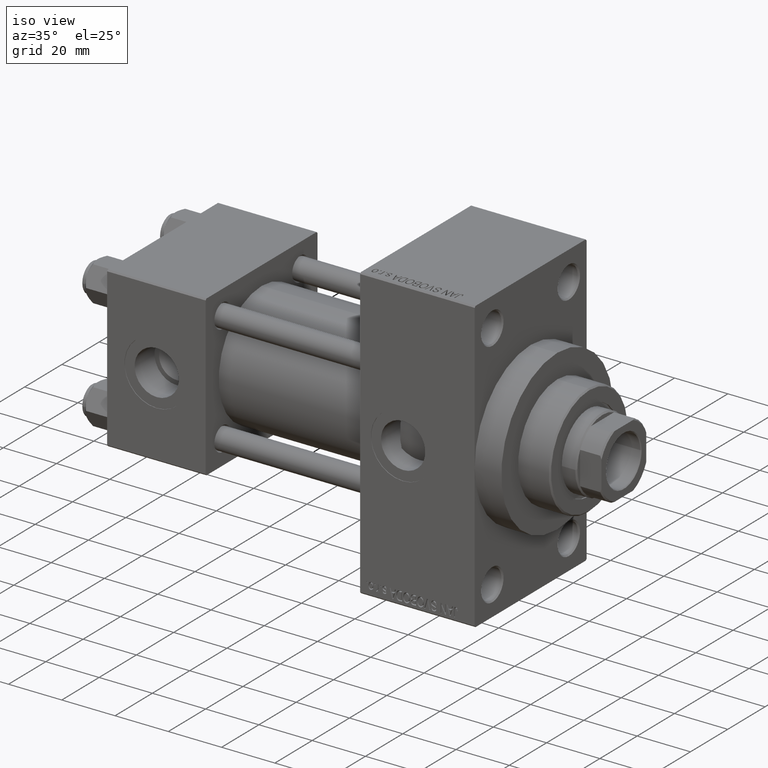
[diagram: clean part render]
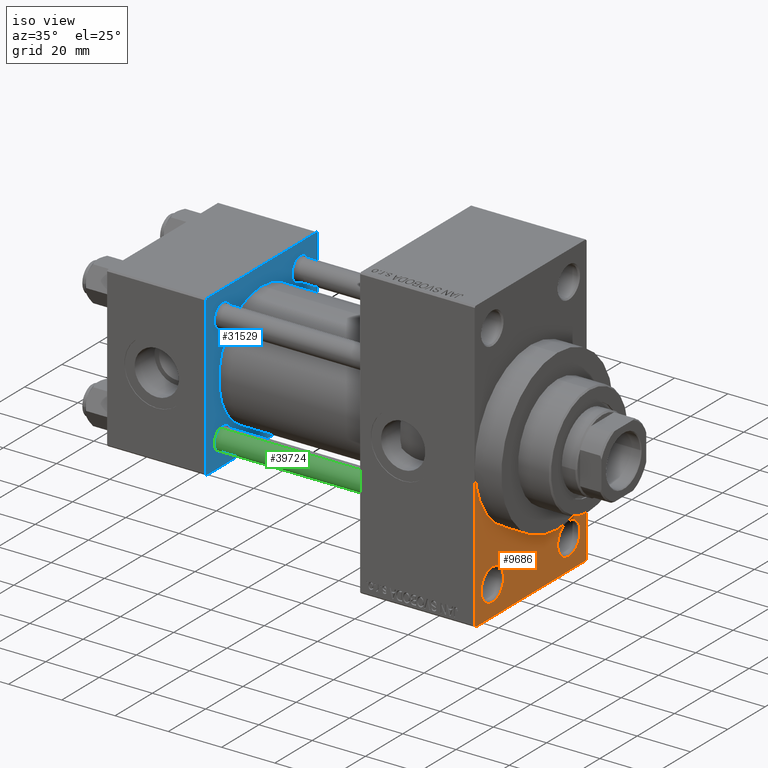
[diagram: same view with three faces highlighted in distinct colors, each labeled with its STEP entity id]
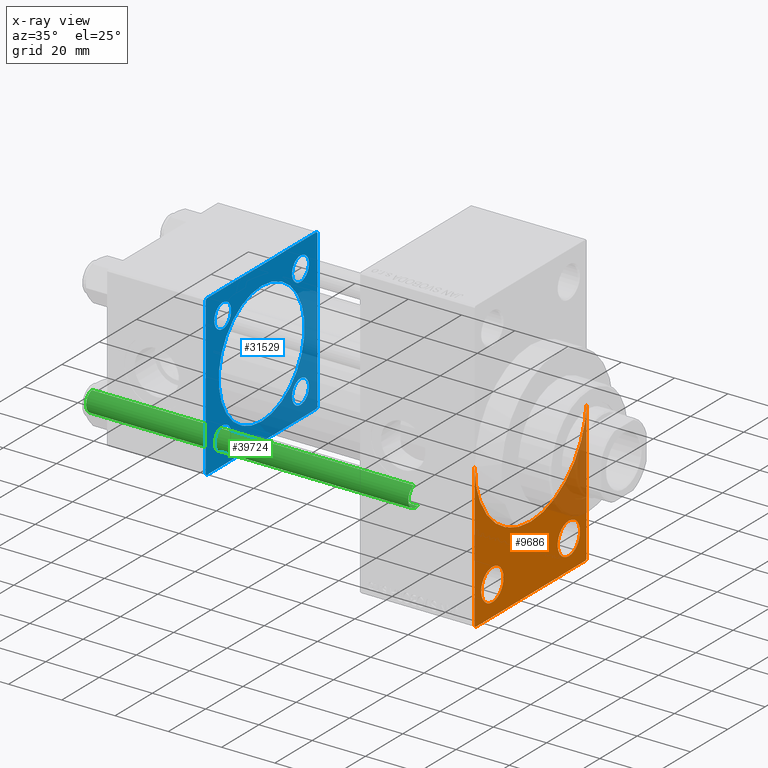
[diagram: x-ray of the same camera — body ghosted, the three highlighted faces saturated]
A machine part, iso view with three faces highlighted in distinct colors.
The next image is the same camera in x-ray (body ghosted, the three faces saturated) — at least one of them is partly hidden behind the body in this view.
Their STEP definitions:

[orange] entity #9686 — the highlighted planar face has unit normal (-1, 0, 0).
#119 = DIRECTION ( 'NONE',  ( 1.000000000000000000, 0.000000000000000000, 0.000000000000000000 ) ) ;
#1067 = VECTOR ( 'NONE', #18495, 1000.000000000000000 ) ;
#2582 = ORIENTED_EDGE ( 'NONE', *, *, #32382, .T. ) ;
#2714 = CIRCLE ( 'NONE', #4291, 6.000000000000088818 ) ;
#3089 = DIRECTION ( 'NONE',  ( 0.000000000000000000, 0.000000000000000000, 1.000000000000000000 ) ) ;
#3223 = ORIENTED_EDGE ( 'NONE', *, *, #3365, .F. ) ;
#3365 = EDGE_CURVE ( 'NONE', #37823, #3366, #43931, .T. ) ;
#3366 = VERTEX_POINT ( 'NONE', #48422 ) ;
#3438 = CARTESIAN_POINT ( 'NONE',  ( 138.0000000000000000, -20.50000000000000000, -37.49999999999990763 ) ) ;
#3810 = DIRECTION ( 'NONE',  ( 0.000000000000000000, 0.000000000000000000, 1.000000000000000000 ) ) ;
#4246 = EDGE_CURVE ( 'NONE', #16936, #34088, #40242, .T. ) ;
#4291 = AXIS2_PLACEMENT_3D ( 'NONE', #12037, #26979, #3810 ) ;
#4528 = VERTEX_POINT ( 'NONE', #46310 ) ;
#5144 = CARTESIAN_POINT ( 'NONE',  ( 138.0000000000000000, 3.673940397442059178E-15, -30.00000000000000000 ) ) ;
#5477 = VERTEX_POINT ( 'NONE', #39130 ) ;
#5916 = CIRCLE ( 'NONE', #28173, 30.00000000000000000 ) ;
#6201 = EDGE_CURVE ( 'NONE', #5477, #4528, #40679, .T. ) ;
#6226 = ORIENTED_EDGE ( 'NONE', *, *, #37238, .T. ) ;
#6772 = AXIS2_PLACEMENT_3D ( 'NONE', #26306, #41508, #38010 ) ;
#7421 = EDGE_CURVE ( 'NONE', #44176, #10917, #2714, .T. ) ;
#9556 = ORIENTED_EDGE ( 'NONE', *, *, #4246, .T. ) ;
#9686 = ADVANCED_FACE ( 'NONE', ( #11124, #30273, #14857 ), #30044, .F. ) ;
#10092 = DIRECTION ( 'NONE',  ( 0.000000000000000000, 0.000000000000000000, -1.000000000000000000 ) ) ;
#10824 = CARTESIAN_POINT ( 'NONE',  ( 138.0000000000000000, 20.50000000000000000, -43.50000000000000000 ) ) ;
#10917 = VERTEX_POINT ( 'NONE', #25267 ) ;
#11124 = FACE_BOUND ( 'NONE', #18761, .T. ) ;
#11246 = DIRECTION ( 'NONE',  ( 0.000000000000000000, 0.7071067811865352493, -0.7071067811865597852 ) ) ;
#11564 = DIRECTION ( 'NONE',  ( 0.000000000000000000, 0.000000000000000000, 1.000000000000000000 ) ) ;
#11848 = CIRCLE ( 'NONE', #20619, 6.000000000000088818 ) ;
#12037 = CARTESIAN_POINT ( 'NONE',  ( 138.0000000000000000, 20.50000000000000000, -43.50000000000000000 ) ) ;
#12931 = VECTOR ( 'NONE', #25978, 1000.000000000000000 ) ;
#13895 = VECTOR ( 'NONE', #37226, 1000.000000000000114 ) ;
#14271 = CARTESIAN_POINT ( 'NONE',  ( 138.0000000000000000, 29.99999999999999645, 54.49999999999999289 ) ) ;
#14857 = FACE_OUTER_BOUND ( 'NONE', #35357, .T. ) ;
#15038 = EDGE_LOOP ( 'NONE', ( #6226, #45407 ) ) ;
#16936 = VERTEX_POINT ( 'NONE', #29042 ) ;
#17309 = ORIENTED_EDGE ( 'NONE', *, *, #35253, .F. ) ;
#17606 = CARTESIAN_POINT ( 'NONE',  ( 138.0000000000000000, -30.00000000000000000, -53.99999999999998579 ) ) ;
#18495 = DIRECTION ( 'NONE',  ( 0.000000000000000000, 0.000000000000000000, -1.000000000000000000 ) ) ;
#18761 = EDGE_LOOP ( 'NONE', ( #2582, #28328 ) ) ;
#19050 = VERTEX_POINT ( 'NONE', #20558 ) ;
#19400 = DIRECTION ( 'NONE',  ( 0.000000000000000000, 0.000000000000000000, 1.000000000000000000 ) ) ;
#19649 = LINE ( 'NONE', #48213, #13895 ) ;
#20558 = CARTESIAN_POINT ( 'NONE',  ( 138.0000000000000000, -20.50000000000000000, -49.50000000000008527 ) ) ;
#20619 = AXIS2_PLACEMENT_3D ( 'NONE', #10824, #26011, #3089 ) ;
#21006 = CIRCLE ( 'NONE', #28924, 6.000000000000088818 ) ;
#21091 = ORIENTED_EDGE ( 'NONE', *, *, #22490, .F. ) ;
#21335 = EDGE_CURVE ( 'NONE', #49299, #19050, #21006, .T. ) ;
#22460 = CARTESIAN_POINT ( 'NONE',  ( 138.0000000000000000, -29.50000000000000355, -54.50000000000000000 ) ) ;
#22490 = EDGE_CURVE ( 'NONE', #40276, #5477, #5916, .T. ) ;
#22799 = EDGE_CURVE ( 'NONE', #37823, #4528, #19649, .T. ) ;
#23158 = EDGE_CURVE ( 'NONE', #34088, #3366, #41402, .T. ) ;
#25267 = CARTESIAN_POINT ( 'NONE',  ( 138.0000000000000000, 20.50000000000000000, -49.50000000000008527 ) ) ;
#25978 = DIRECTION ( 'NONE',  ( 0.000000000000000000, -1.000000000000000000, -1.156482317317871478E-16 ) ) ;
#26011 = DIRECTION ( 'NONE',  ( -1.000000000000000000, 0.000000000000000000, -0.000000000000000000 ) ) ;
#26306 = CARTESIAN_POINT ( 'NONE',  ( 138.0000000000000000, 0.000000000000000000, 0.000000000000000000 ) ) ;
#26979 = DIRECTION ( 'NONE',  ( -1.000000000000000000, 0.000000000000000000, -0.000000000000000000 ) ) ;
#27523 = DIRECTION ( 'NONE',  ( 0.000000000000000000, 0.000000000000000000, -1.000000000000000000 ) ) ;
#28173 = AXIS2_PLACEMENT_3D ( 'NONE', #38376, #35377, #34632 ) ;
#28328 = ORIENTED_EDGE ( 'NONE', *, *, #21335, .T. ) ;
#28924 = AXIS2_PLACEMENT_3D ( 'NONE', #41954, #41467, #11564 ) ;
#29042 = CARTESIAN_POINT ( 'NONE',  ( 138.0000000000000000, -30.00000000000000000, 0.000000000000000000 ) ) ;
#29211 = CIRCLE ( 'NONE', #43556, 6.000000000000088818 ) ;
#29280 = AXIS2_PLACEMENT_3D ( 'NONE', #38238, #119, #27523 ) ;
#29749 = CARTESIAN_POINT ( 'NONE',  ( 138.0000000000000000, -30.00000000000000000, 54.50000000000000000 ) ) ;
#30044 = PLANE ( 'NONE',  #6772 ) ;
#30273 = FACE_BOUND ( 'NONE', #15038, .T. ) ;
#30589 = DIRECTION ( 'NONE',  ( -1.000000000000000000, 0.000000000000000000, -0.000000000000000000 ) ) ;
#32382 = EDGE_CURVE ( 'NONE', #19050, #49299, #29211, .T. ) ;
#33121 = ORIENTED_EDGE ( 'NONE', *, *, #22799, .T. ) ;
#33173 = CARTESIAN_POINT ( 'NONE',  ( 138.0000000000000000, 29.49999999999999645, -54.49999999999999289 ) ) ;
#34088 = VERTEX_POINT ( 'NONE', #17606 ) ;
#34094 = CARTESIAN_POINT ( 'NONE',  ( 138.0000000000000000, -20.50000000000000000, -43.50000000000000000 ) ) ;
#34632 = DIRECTION ( 'NONE',  ( 0.000000000000000000, 0.000000000000000000, -1.000000000000000000 ) ) ;
#35253 = EDGE_CURVE ( 'NONE', #16936, #40276, #40458, .T. ) ;
#35357 = EDGE_LOOP ( 'NONE', ( #9556, #41516, #3223, #33121, #41259, #21091, #17309 ) ) ;
#35377 = DIRECTION ( 'NONE',  ( 1.000000000000000000, 0.000000000000000000, 0.000000000000000000 ) ) ;
#37226 = DIRECTION ( 'NONE',  ( -0.000000000000000000, 0.7071067811865474617, 0.7071067811865474617 ) ) ;
#37238 = EDGE_CURVE ( 'NONE', #10917, #44176, #11848, .T. ) ;
#37823 = VERTEX_POINT ( 'NONE', #33173 ) ;
#38010 = DIRECTION ( 'NONE',  ( -0.000000000000000000, 0.000000000000000000, 1.000000000000000000 ) ) ;
#38238 = CARTESIAN_POINT ( 'NONE',  ( 138.0000000000000000, 0.000000000000000000, 0.000000000000000000 ) ) ;
#38376 = CARTESIAN_POINT ( 'NONE',  ( 138.0000000000000000, 0.000000000000000000, 0.000000000000000000 ) ) ;
#39130 = CARTESIAN_POINT ( 'NONE',  ( 138.0000000000000000, 30.00000000000000000, 0.000000000000000000 ) ) ;
#39202 = VECTOR ( 'NONE', #10092, 1000.000000000000000 ) ;
#40242 = LINE ( 'NONE', #29749, #39202 ) ;
#40276 = VERTEX_POINT ( 'NONE', #5144 ) ;
#40458 = CIRCLE ( 'NONE', #29280, 30.00000000000000000 ) ;
#40679 = LINE ( 'NONE', #14271, #1067 ) ;
#41259 = ORIENTED_EDGE ( 'NONE', *, *, #6201, .F. ) ;
#41402 = LINE ( 'NONE', #22460, #42550 ) ;
#41467 = DIRECTION ( 'NONE',  ( -1.000000000000000000, 0.000000000000000000, -0.000000000000000000 ) ) ;
#41508 = DIRECTION ( 'NONE',  ( -1.000000000000000000, 0.000000000000000000, -0.000000000000000000 ) ) ;
#41516 = ORIENTED_EDGE ( 'NONE', *, *, #23158, .T. ) ;
#41954 = CARTESIAN_POINT ( 'NONE',  ( 138.0000000000000000, -20.50000000000000000, -43.50000000000000000 ) ) ;
#42550 = VECTOR ( 'NONE', #11246, 1000.000000000000000 ) ;
#43556 = AXIS2_PLACEMENT_3D ( 'NONE', #34094, #30589, #19400 ) ;
#43931 = LINE ( 'NONE', #48664, #12931 ) ;
#44176 = VERTEX_POINT ( 'NONE', #46256 ) ;
#45407 = ORIENTED_EDGE ( 'NONE', *, *, #7421, .T. ) ;
#46256 = CARTESIAN_POINT ( 'NONE',  ( 138.0000000000000000, 20.50000000000000000, -37.49999999999990763 ) ) ;
#46310 = CARTESIAN_POINT ( 'NONE',  ( 138.0000000000000000, 29.99999999999999645, -53.99999999999999289 ) ) ;
#48213 = CARTESIAN_POINT ( 'NONE',  ( 138.0000000000000000, 29.99999999999999645, -53.99999999999999289 ) ) ;
#48422 = CARTESIAN_POINT ( 'NONE',  ( 138.0000000000000000, -29.50000000000000355, -54.50000000000000000 ) ) ;
#48664 = CARTESIAN_POINT ( 'NONE',  ( 138.0000000000000000, 29.99999999999999645, -54.49999999999999289 ) ) ;
#49299 = VERTEX_POINT ( 'NONE', #3438 ) ;

[blue] entity #31529 — the highlighted planar face has unit normal (-1, 0, 0).
#1360 = DIRECTION ( 'NONE',  ( -1.000000000000000000, 0.000000000000000000, -0.000000000000000000 ) ) ;
#1493 = CARTESIAN_POINT ( 'NONE',  ( 37.00000000000000000, -29.50000000000001066, -30.00000000000000711 ) ) ;
#1728 = VERTEX_POINT ( 'NONE', #45144 ) ;
#2365 = EDGE_LOOP ( 'NONE', ( #8605, #44948 ) ) ;
#2910 = ORIENTED_EDGE ( 'NONE', *, *, #24853, .T. ) ;
#3145 = CARTESIAN_POINT ( 'NONE',  ( 37.00000000000000000, -30.00000000000000000, 29.49999999999999289 ) ) ;
#3980 = EDGE_CURVE ( 'NONE', #37350, #46282, #46339, .T. ) ;
#4226 = DIRECTION ( 'NONE',  ( 0.000000000000000000, 0.000000000000000000, 1.000000000000000000 ) ) ;
#4618 = VERTEX_POINT ( 'NONE', #5664 ) ;
#4656 = EDGE_CURVE ( 'NONE', #16578, #30464, #48021, .T. ) ;
#4846 = LINE ( 'NONE', #15576, #12530 ) ;
#5553 = AXIS2_PLACEMENT_3D ( 'NONE', #44922, #45405, #30680 ) ;
#5664 = CARTESIAN_POINT ( 'NONE',  ( 37.00000000000000000, 20.84999999999999787, -16.35000000000002274 ) ) ;
#5832 = DIRECTION ( 'NONE',  ( 0.000000000000000000, 0.000000000000000000, 1.000000000000000000 ) ) ;
#6023 = VERTEX_POINT ( 'NONE', #42193 ) ;
#6095 = VERTEX_POINT ( 'NONE', #28469 ) ;
#6136 = VECTOR ( 'NONE', #46396, 1000.000000000000000 ) ;
#6148 = DIRECTION ( 'NONE',  ( 0.000000000000000000, 0.000000000000000000, -1.000000000000000000 ) ) ;
#6679 = CARTESIAN_POINT ( 'NONE',  ( 37.00000000000000000, 29.49999999999997868, -30.00000000000000000 ) ) ;
#6894 = DIRECTION ( 'NONE',  ( 0.000000000000000000, 0.000000000000000000, 1.000000000000000000 ) ) ;
#6986 = EDGE_CURVE ( 'NONE', #16578, #11521, #31599, .T. ) ;
#7535 = VECTOR ( 'NONE', #14380, 1000.000000000000114 ) ;
#7792 = CARTESIAN_POINT ( 'NONE',  ( 37.00000000000000000, 29.49999999999999289, 30.00000000000000000 ) ) ;
#8605 = ORIENTED_EDGE ( 'NONE', *, *, #20136, .T. ) ;
#8693 = CARTESIAN_POINT ( 'NONE',  ( 37.00000000000000000, 29.99999999999999289, -30.00000000000000000 ) ) ;
#9564 = EDGE_CURVE ( 'NONE', #44207, #11521, #18126, .T. ) ;
#9673 = CARTESIAN_POINT ( 'NONE',  ( 37.00000000000000000, -2.602085213965210642E-15, 23.00000000000000000 ) ) ;
#9757 = ORIENTED_EDGE ( 'NONE', *, *, #36156, .T. ) ;
#9928 = DIRECTION ( 'NONE',  ( -1.000000000000000000, 0.000000000000000000, -0.000000000000000000 ) ) ;
#9987 = DIRECTION ( 'NONE',  ( -0.000000000000000000, -0.7071067811865474617, -0.7071067811865474617 ) ) ;
#10961 = CARTESIAN_POINT ( 'NONE',  ( 37.00000000000000000, 20.84999999999999787, 25.34999999999997655 ) ) ;
#11346 = EDGE_CURVE ( 'NONE', #46282, #37350, #20246, .T. ) ;
#11442 = CARTESIAN_POINT ( 'NONE',  ( 37.00000000000000000, 29.99999999999999289, -29.50000000000000000 ) ) ;
#11521 = VERTEX_POINT ( 'NONE', #44578 ) ;
#11537 = CIRCLE ( 'NONE', #17920, 4.499999999999976019 ) ;
#11621 = DIRECTION ( 'NONE',  ( -1.000000000000000000, 0.000000000000000000, -0.000000000000000000 ) ) ;
#11782 = VECTOR ( 'NONE', #37937, 1000.000000000000114 ) ;
#11815 = AXIS2_PLACEMENT_3D ( 'NONE', #29553, #25815, #6894 ) ;
#12530 = VECTOR ( 'NONE', #20055, 1000.000000000000000 ) ;
#12532 = DIRECTION ( 'NONE',  ( 0.000000000000000000, 0.000000000000000000, 1.000000000000000000 ) ) ;
#12730 = DIRECTION ( 'NONE',  ( 0.000000000000000000, 0.000000000000000000, 1.000000000000000000 ) ) ;
#13339 = EDGE_LOOP ( 'NONE', ( #2910, #9757 ) ) ;
#13355 = VECTOR ( 'NONE', #6148, 1000.000000000000000 ) ;
#13646 = CARTESIAN_POINT ( 'NONE',  ( 37.00000000000000000, -20.84999999999999076, 20.85000000000000497 ) ) ;
#13724 = CARTESIAN_POINT ( 'NONE',  ( 37.00000000000000000, -30.00000000000000000, 29.49999999999999289 ) ) ;
#13918 = FACE_BOUND ( 'NONE', #2365, .T. ) ;
#14318 = CARTESIAN_POINT ( 'NONE',  ( 37.00000000000000000, 20.84999999999999787, 16.35000000000002274 ) ) ;
#14380 = DIRECTION ( 'NONE',  ( 0.000000000000000000, 0.7071067811865474617, -0.7071067811865474617 ) ) ;
#15078 = AXIS2_PLACEMENT_3D ( 'NONE', #26866, #31329, #41815 ) ;
#15508 = CIRCLE ( 'NONE', #40168, 23.00000000000000000 ) ;
#15576 = CARTESIAN_POINT ( 'NONE',  ( 37.00000000000000000, 29.99999999999999289, 30.00000000000000000 ) ) ;
#15602 = CARTESIAN_POINT ( 'NONE',  ( 37.00000000000000000, -30.00000000000000000, -29.50000000000001776 ) ) ;
#15994 = CARTESIAN_POINT ( 'NONE',  ( 37.00000000000000000, 29.99999999999999289, 30.00000000000000000 ) ) ;
#16191 = CARTESIAN_POINT ( 'NONE',  ( 37.00000000000000000, 20.84999999999999787, 20.85000000000000142 ) ) ;
#16578 = VERTEX_POINT ( 'NONE', #6679 ) ;
#17442 = CIRCLE ( 'NONE', #18234, 4.499999999999976019 ) ;
#17920 = AXIS2_PLACEMENT_3D ( 'NONE', #22582, #11621, #37777 ) ;
#18126 = LINE ( 'NONE', #1493, #7535 ) ;
#18205 = CIRCLE ( 'NONE', #25379, 4.499999999999976019 ) ;
#18234 = AXIS2_PLACEMENT_3D ( 'NONE', #42179, #31203, #12532 ) ;
#18372 = ORIENTED_EDGE ( 'NONE', *, *, #27265, .F. ) ;
#18631 = CARTESIAN_POINT ( 'NONE',  ( 37.00000000000000000, 0.000000000000000000, 0.000000000000000000 ) ) ;
#19080 = ORIENTED_EDGE ( 'NONE', *, *, #34591, .T. ) ;
#19735 = LINE ( 'NONE', #15994, #6136 ) ;
#20055 = DIRECTION ( 'NONE',  ( 0.000000000000000000, 0.000000000000000000, -1.000000000000000000 ) ) ;
#20136 = EDGE_CURVE ( 'NONE', #45166, #28128, #29711, .T. ) ;
#20246 = CIRCLE ( 'NONE', #47321, 4.499999999999976019 ) ;
#20311 = CARTESIAN_POINT ( 'NONE',  ( 37.00000000000000000, 20.84999999999999787, -20.85000000000000142 ) ) ;
#21367 = CARTESIAN_POINT ( 'NONE',  ( 37.00000000000000000, 29.99999999999999289, -29.50000000000000000 ) ) ;
#21943 = EDGE_CURVE ( 'NONE', #37293, #35124, #28664, .T. ) ;
#22582 = CARTESIAN_POINT ( 'NONE',  ( 37.00000000000000000, 20.84999999999999787, -20.85000000000000142 ) ) ;
#23937 = CARTESIAN_POINT ( 'NONE',  ( 37.00000000000000000, -2.602085213965210642E-15, 0.000000000000000000 ) ) ;
#24838 = AXIS2_PLACEMENT_3D ( 'NONE', #28369, #9928, #40587 ) ;
#24853 = EDGE_CURVE ( 'NONE', #6095, #4618, #11537, .T. ) ;
#25332 = LINE ( 'NONE', #48005, #13355 ) ;
#25351 = ORIENTED_EDGE ( 'NONE', *, *, #39660, .T. ) ;
#25379 = AXIS2_PLACEMENT_3D ( 'NONE', #20311, #1360, #5832 ) ;
#25678 = VERTEX_POINT ( 'NONE', #9673 ) ;
#25815 = DIRECTION ( 'NONE',  ( 1.000000000000000000, -0.000000000000000000, 0.000000000000000000 ) ) ;
#26338 = DIRECTION ( 'NONE',  ( -0.000000000000000000, 0.000000000000000000, 1.000000000000000000 ) ) ;
#26728 = LINE ( 'NONE', #7792, #11782 ) ;
#26866 = CARTESIAN_POINT ( 'NONE',  ( 37.00000000000000000, -20.84999999999999076, 20.85000000000000497 ) ) ;
#27265 = EDGE_CURVE ( 'NONE', #25678, #45801, #15508, .T. ) ;
#27574 = AXIS2_PLACEMENT_3D ( 'NONE', #18631, #44801, #26338 ) ;
#28083 = DIRECTION ( 'NONE',  ( -0.000000000000000000, 0.7071067811865574537, 0.7071067811865376918 ) ) ;
#28128 = VERTEX_POINT ( 'NONE', #37856 ) ;
#28132 = VECTOR ( 'NONE', #46828, 1000.000000000000000 ) ;
#28369 = CARTESIAN_POINT ( 'NONE',  ( 37.00000000000000000, 20.84999999999999787, 20.85000000000000142 ) ) ;
#28469 = CARTESIAN_POINT ( 'NONE',  ( 37.00000000000000000, 20.84999999999999787, -25.34999999999997655 ) ) ;
#28629 = CIRCLE ( 'NONE', #15078, 4.499999999999976019 ) ;
#28664 = LINE ( 'NONE', #13724, #48076 ) ;
#28835 = DIRECTION ( 'NONE',  ( 0.000000000000000000, 0.000000000000000000, 1.000000000000000000 ) ) ;
#29553 = CARTESIAN_POINT ( 'NONE',  ( 37.00000000000000000, -2.602085213965210642E-15, 0.000000000000000000 ) ) ;
#29711 = CIRCLE ( 'NONE', #46406, 4.499999999999976019 ) ;
#29837 = FACE_BOUND ( 'NONE', #38760, .T. ) ;
#30074 = FACE_OUTER_BOUND ( 'NONE', #48754, .T. ) ;
#30464 = VERTEX_POINT ( 'NONE', #11442 ) ;
#30680 = DIRECTION ( 'NONE',  ( 0.000000000000000000, 0.000000000000000000, 1.000000000000000000 ) ) ;
#31203 = DIRECTION ( 'NONE',  ( -1.000000000000000000, 0.000000000000000000, -0.000000000000000000 ) ) ;
#31329 = DIRECTION ( 'NONE',  ( -1.000000000000000000, 0.000000000000000000, -0.000000000000000000 ) ) ;
#31529 = ADVANCED_FACE ( 'NONE', ( #47810, #48051, #13918, #45048, #29837, #30074 ), #34049, .F. ) ;
#31599 = LINE ( 'NONE', #8693, #28132 ) ;
#32773 = EDGE_CURVE ( 'NONE', #1728, #37293, #19735, .T. ) ;
#32989 = ORIENTED_EDGE ( 'NONE', *, *, #9564, .T. ) ;
#33070 = ORIENTED_EDGE ( 'NONE', *, *, #37398, .T. ) ;
#33650 = ORIENTED_EDGE ( 'NONE', *, *, #34070, .T. ) ;
#33677 = CARTESIAN_POINT ( 'NONE',  ( 37.00000000000000000, 2.146024240737012665E-16, -23.00000000000000000 ) ) ;
#33841 = ORIENTED_EDGE ( 'NONE', *, *, #21943, .T. ) ;
#34002 = CARTESIAN_POINT ( 'NONE',  ( 37.00000000000000000, -20.84999999999999076, -16.35000000000002629 ) ) ;
#34049 = PLANE ( 'NONE',  #27574 ) ;
#34070 = EDGE_CURVE ( 'NONE', #35124, #44207, #25332, .T. ) ;
#34193 = VERTEX_POINT ( 'NONE', #34002 ) ;
#34282 = EDGE_CURVE ( 'NONE', #39300, #30464, #4846, .T. ) ;
#34591 = EDGE_CURVE ( 'NONE', #39300, #1728, #26728, .T. ) ;
#35110 = DIRECTION ( 'NONE',  ( -1.000000000000000000, 0.000000000000000000, -0.000000000000000000 ) ) ;
#35124 = VERTEX_POINT ( 'NONE', #3145 ) ;
#35214 = ORIENTED_EDGE ( 'NONE', *, *, #36056, .F. ) ;
#36056 = EDGE_CURVE ( 'NONE', #45801, #25678, #36495, .T. ) ;
#36156 = EDGE_CURVE ( 'NONE', #4618, #6095, #18205, .T. ) ;
#36495 = CIRCLE ( 'NONE', #11815, 23.00000000000000000 ) ;
#36655 = ORIENTED_EDGE ( 'NONE', *, *, #32773, .T. ) ;
#36950 = EDGE_LOOP ( 'NONE', ( #25351, #33070 ) ) ;
#37089 = ORIENTED_EDGE ( 'NONE', *, *, #6986, .F. ) ;
#37293 = VERTEX_POINT ( 'NONE', #41449 ) ;
#37350 = VERTEX_POINT ( 'NONE', #14318 ) ;
#37398 = EDGE_CURVE ( 'NONE', #34193, #6023, #17442, .T. ) ;
#37777 = DIRECTION ( 'NONE',  ( 0.000000000000000000, 0.000000000000000000, 1.000000000000000000 ) ) ;
#37856 = CARTESIAN_POINT ( 'NONE',  ( 37.00000000000000000, -20.84999999999999076, 25.34999999999998010 ) ) ;
#37937 = DIRECTION ( 'NONE',  ( 0.000000000000000000, -0.7071067811865474617, 0.7071067811865474617 ) ) ;
#38760 = EDGE_LOOP ( 'NONE', ( #18372, #35214 ) ) ;
#39300 = VERTEX_POINT ( 'NONE', #44257 ) ;
#39660 = EDGE_CURVE ( 'NONE', #6023, #34193, #42141, .T. ) ;
#40168 = AXIS2_PLACEMENT_3D ( 'NONE', #23937, #43622, #12730 ) ;
#40587 = DIRECTION ( 'NONE',  ( 0.000000000000000000, 0.000000000000000000, 1.000000000000000000 ) ) ;
#40869 = CARTESIAN_POINT ( 'NONE',  ( 37.00000000000000000, -20.84999999999999076, 16.35000000000002629 ) ) ;
#41206 = ORIENTED_EDGE ( 'NONE', *, *, #11346, .T. ) ;
#41449 = CARTESIAN_POINT ( 'NONE',  ( 37.00000000000000000, -29.49999999999998579, 29.99999999999999289 ) ) ;
#41581 = VECTOR ( 'NONE', #28083, 999.9999999999998863 ) ;
#41815 = DIRECTION ( 'NONE',  ( 0.000000000000000000, 0.000000000000000000, 1.000000000000000000 ) ) ;
#42103 = ORIENTED_EDGE ( 'NONE', *, *, #3980, .T. ) ;
#42141 = CIRCLE ( 'NONE', #5553, 4.499999999999976019 ) ;
#42179 = CARTESIAN_POINT ( 'NONE',  ( 37.00000000000000000, -20.84999999999999076, -20.85000000000000497 ) ) ;
#42193 = CARTESIAN_POINT ( 'NONE',  ( 37.00000000000000000, -20.84999999999999076, -25.34999999999998010 ) ) ;
#42463 = ORIENTED_EDGE ( 'NONE', *, *, #34282, .F. ) ;
#42673 = EDGE_LOOP ( 'NONE', ( #42103, #41206 ) ) ;
#43093 = EDGE_CURVE ( 'NONE', #28128, #45166, #28629, .T. ) ;
#43622 = DIRECTION ( 'NONE',  ( 1.000000000000000000, -0.000000000000000000, 0.000000000000000000 ) ) ;
#44207 = VERTEX_POINT ( 'NONE', #15602 ) ;
#44257 = CARTESIAN_POINT ( 'NONE',  ( 37.00000000000000000, 29.99999999999999289, 29.50000000000000000 ) ) ;
#44578 = CARTESIAN_POINT ( 'NONE',  ( 37.00000000000000000, -29.50000000000000000, -30.00000000000000711 ) ) ;
#44801 = DIRECTION ( 'NONE',  ( -1.000000000000000000, 0.000000000000000000, -0.000000000000000000 ) ) ;
#44922 = CARTESIAN_POINT ( 'NONE',  ( 37.00000000000000000, -20.84999999999999076, -20.85000000000000497 ) ) ;
#44948 = ORIENTED_EDGE ( 'NONE', *, *, #43093, .T. ) ;
#45048 = FACE_BOUND ( 'NONE', #42673, .T. ) ;
#45144 = CARTESIAN_POINT ( 'NONE',  ( 37.00000000000000000, 29.49999999999999289, 30.00000000000000000 ) ) ;
#45166 = VERTEX_POINT ( 'NONE', #40869 ) ;
#45405 = DIRECTION ( 'NONE',  ( -1.000000000000000000, 0.000000000000000000, -0.000000000000000000 ) ) ;
#45801 = VERTEX_POINT ( 'NONE', #33677 ) ;
#46282 = VERTEX_POINT ( 'NONE', #10961 ) ;
#46339 = CIRCLE ( 'NONE', #24838, 4.499999999999976019 ) ;
#46396 = DIRECTION ( 'NONE',  ( 0.000000000000000000, -1.000000000000000000, -1.156482317317871725E-16 ) ) ;
#46406 = AXIS2_PLACEMENT_3D ( 'NONE', #13646, #47542, #28835 ) ;
#46797 = ORIENTED_EDGE ( 'NONE', *, *, #4656, .T. ) ;
#46828 = DIRECTION ( 'NONE',  ( 0.000000000000000000, -1.000000000000000000, -1.156482317317871725E-16 ) ) ;
#47321 = AXIS2_PLACEMENT_3D ( 'NONE', #16191, #35110, #4226 ) ;
#47542 = DIRECTION ( 'NONE',  ( -1.000000000000000000, 0.000000000000000000, -0.000000000000000000 ) ) ;
#47810 = FACE_BOUND ( 'NONE', #36950, .T. ) ;
#48005 = CARTESIAN_POINT ( 'NONE',  ( 37.00000000000000000, -30.00000000000000000, 29.99999999999999289 ) ) ;
#48021 = LINE ( 'NONE', #21367, #41581 ) ;
#48051 = FACE_BOUND ( 'NONE', #13339, .T. ) ;
#48076 = VECTOR ( 'NONE', #9987, 1000.000000000000114 ) ;
#48754 = EDGE_LOOP ( 'NONE', ( #37089, #46797, #42463, #19080, #36655, #33841, #33650, #32989 ) ) ;

[green] entity #39724 — the highlighted cylindrical surface (edge-blend (fillet) strip) has radius 4 mm, axis along (-1, 0, 0).
#3090 = EDGE_CURVE ( 'NONE', #45869, #15277, #23525, .T. ) ;
#3220 = EDGE_CURVE ( 'NONE', #45869, #5364, #14494, .T. ) ;
#3434 = LINE ( 'NONE', #49290, #3766 ) ;
#3766 = VECTOR ( 'NONE', #45065, 1000.000000000000000 ) ;
#5364 = VERTEX_POINT ( 'NONE', #41628 ) ;
#5811 = DIRECTION ( 'NONE',  ( 1.000000000000000000, 0.000000000000000000, 0.000000000000000000 ) ) ;
#10297 = CARTESIAN_POINT ( 'NONE',  ( -4.000000000000000000, 0.000000000000000000, 121.5000000000000426 ) ) ;
#11318 = AXIS2_PLACEMENT_3D ( 'NONE', #38969, #17281, #5811 ) ;
#12549 = EDGE_CURVE ( 'NONE', #42474, #15277, #34601, .T. ) ;
#12626 = CARTESIAN_POINT ( 'NONE',  ( -4.000000000000000000, 0.000000000000000000, 0.5000000000000559552 ) ) ;
#12994 = DIRECTION ( 'NONE',  ( -0.000000000000000000, -0.000000000000000000, -1.000000000000000000 ) ) ;
#14205 = ORIENTED_EDGE ( 'NONE', *, *, #12549, .T. ) ;
#14494 = CIRCLE ( 'NONE', #11318, 4.000000000000000000 ) ;
#15277 = VERTEX_POINT ( 'NONE', #12626 ) ;
#16620 = AXIS2_PLACEMENT_3D ( 'NONE', #38919, #12994, #20485 ) ;
#17281 = DIRECTION ( 'NONE',  ( 0.000000000000000000, 0.000000000000000000, -1.000000000000000000 ) ) ;
#19792 = CARTESIAN_POINT ( 'NONE',  ( -4.000000000000000000, 0.000000000000000000, 122.0000000000000000 ) ) ;
#20485 = DIRECTION ( 'NONE',  ( -1.000000000000000000, 0.000000000000000000, 0.000000000000000000 ) ) ;
#22390 = ORIENTED_EDGE ( 'NONE', *, *, #33843, .T. ) ;
#23525 = LINE ( 'NONE', #19792, #35929 ) ;
#26248 = CARTESIAN_POINT ( 'NONE',  ( 4.000000000000000000, 4.898587196589411843E-16, 0.5000000000000559552 ) ) ;
#26455 = CYLINDRICAL_SURFACE ( 'NONE', #16620, 4.000000000000000000 ) ;
#26632 = AXIS2_PLACEMENT_3D ( 'NONE', #44586, #36848, #48079 ) ;
#30196 = FACE_OUTER_BOUND ( 'NONE', #33885, .T. ) ;
#31332 = ORIENTED_EDGE ( 'NONE', *, *, #3220, .T. ) ;
#33843 = EDGE_CURVE ( 'NONE', #5364, #42474, #3434, .T. ) ;
#33885 = EDGE_LOOP ( 'NONE', ( #31332, #22390, #14205, #41559 ) ) ;
#34470 = DIRECTION ( 'NONE',  ( -0.000000000000000000, -0.000000000000000000, -1.000000000000000000 ) ) ;
#34601 = CIRCLE ( 'NONE', #26632, 4.000000000000000000 ) ;
#35929 = VECTOR ( 'NONE', #34470, 1000.000000000000000 ) ;
#36848 = DIRECTION ( 'NONE',  ( -0.000000000000000000, -0.000000000000000000, 1.000000000000000000 ) ) ;
#38919 = CARTESIAN_POINT ( 'NONE',  ( 0.000000000000000000, 0.000000000000000000, 122.0000000000000000 ) ) ;
#38969 = CARTESIAN_POINT ( 'NONE',  ( 0.000000000000000000, 0.000000000000000000, 121.5000000000000426 ) ) ;
#39724 = ADVANCED_FACE ( 'NONE', ( #30196 ), #26455, .T. ) ;
#41559 = ORIENTED_EDGE ( 'NONE', *, *, #3090, .F. ) ;
#41628 = CARTESIAN_POINT ( 'NONE',  ( 4.000000000000000000, 4.898587196589411843E-16, 121.5000000000000426 ) ) ;
#42474 = VERTEX_POINT ( 'NONE', #26248 ) ;
#44586 = CARTESIAN_POINT ( 'NONE',  ( 0.000000000000000000, 0.000000000000000000, 0.5000000000000559552 ) ) ;
#45065 = DIRECTION ( 'NONE',  ( -0.000000000000000000, -0.000000000000000000, -1.000000000000000000 ) ) ;
#45869 = VERTEX_POINT ( 'NONE', #10297 ) ;
#48079 = DIRECTION ( 'NONE',  ( 1.000000000000000000, 0.000000000000000000, 0.000000000000000000 ) ) ;
#49290 = CARTESIAN_POINT ( 'NONE',  ( 4.000000000000000000, 4.898587196589411843E-16, 122.0000000000000000 ) ) ;